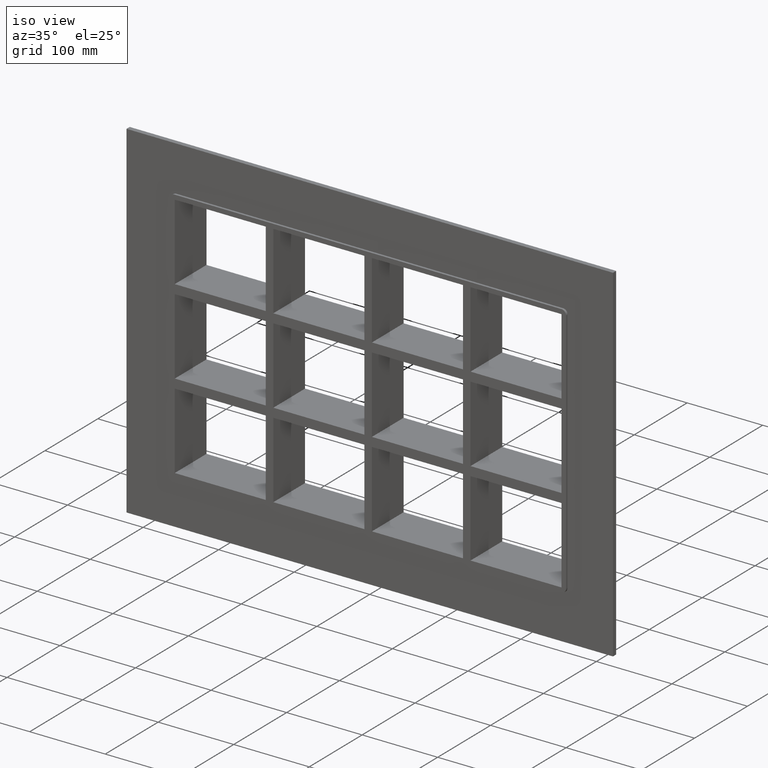
[diagram: clean part render]
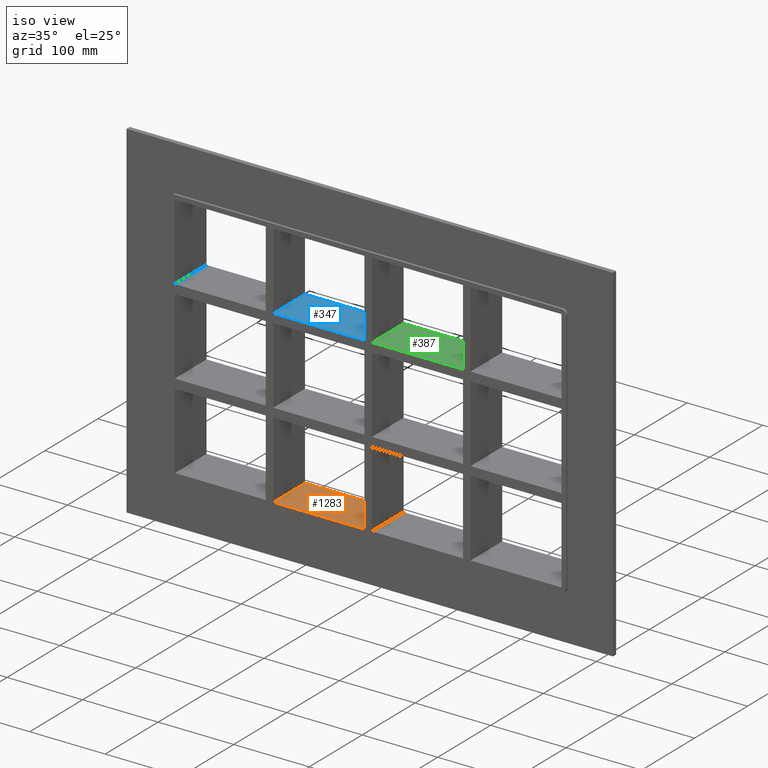
[diagram: same view with three faces highlighted in distinct colors, each labeled with its STEP entity id]
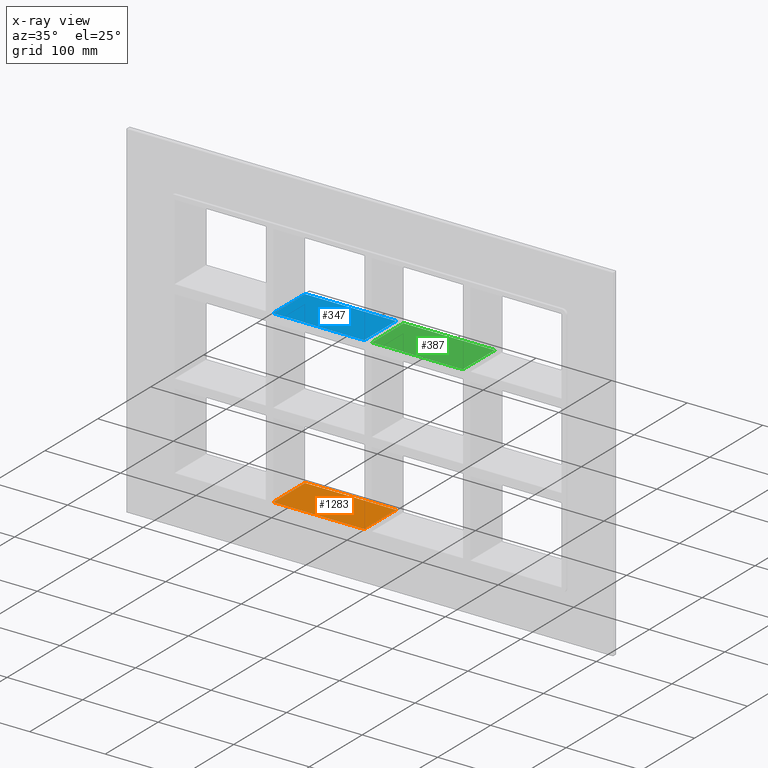
[diagram: x-ray of the same camera — body ghosted, the three highlighted faces saturated]
A machine part, iso view with three faces highlighted in distinct colors.
The next image is the same camera in x-ray (body ghosted, the three faces saturated) — at least one of them is partly hidden behind the body in this view.
Their STEP definitions:

[orange] entity #1283 — the highlighted planar face has unit normal (0, 0, -1).
#926=CARTESIAN_POINT('',(-5.000000000001315,57.0,-163.50000000000006));
#927=VERTEX_POINT('',#926);
#944=CARTESIAN_POINT('',(-125.49999999999272,57.0,-163.49999999998428));
#945=VERTEX_POINT('',#944);
#952=CARTESIAN_POINT('',(-125.49999999999272,57.0,-163.50000000000006));
#953=DIRECTION('',(1.0,0.0,0.0));
#954=VECTOR('',#953,120.49999999999142);
#955=LINE('',#952,#954);
#956=EDGE_CURVE('',#945,#927,#955,.T.);
#1188=CARTESIAN_POINT('',(-5.000000000001315,-3.0,-163.50000000000006));
#1189=VERTEX_POINT('',#1188);
#1190=CARTESIAN_POINT('',(-5.000000000001315,-3.0,-163.50000000000006));
#1191=DIRECTION('',(0.0,1.0,0.0));
#1192=VECTOR('',#1191,60.000000000000007);
#1193=LINE('',#1190,#1192);
#1194=EDGE_CURVE('',#1189,#927,#1193,.T.);
#1260=CARTESIAN_POINT('',(256.0,0.0,-163.50000000000006));
#1261=DIRECTION('',(0.0,0.0,-1.0));
#1262=DIRECTION('',(-1.0,0.0,0.0));
#1263=AXIS2_PLACEMENT_3D('',#1260,#1261,#1262);
#1264=PLANE('',#1263);
#1265=ORIENTED_EDGE('',*,*,#1194,.T.);
#1266=ORIENTED_EDGE('',*,*,#956,.F.);
#1267=CARTESIAN_POINT('',(-125.49999999999272,-3.0,-163.49999999998428));
#1268=VERTEX_POINT('',#1267);
#1269=CARTESIAN_POINT('',(-125.49999999999272,57.000000000000007,-163.50000000000006));
#1270=DIRECTION('',(0.0,-1.0,0.0));
#1271=VECTOR('',#1270,60.000000000000007);
#1272=LINE('',#1269,#1271);
#1273=EDGE_CURVE('',#945,#1268,#1272,.T.);
#1274=ORIENTED_EDGE('',*,*,#1273,.T.);
#1275=CARTESIAN_POINT('',(-5.000000000001307,-3.0,-163.50000000000006));
#1276=DIRECTION('',(-1.0,0.0,0.0));
#1277=VECTOR('',#1276,120.49999999999142);
#1278=LINE('',#1275,#1277);
#1279=EDGE_CURVE('',#1189,#1268,#1278,.T.);
#1280=ORIENTED_EDGE('',*,*,#1279,.F.);
#1281=EDGE_LOOP('',(#1265,#1266,#1274,#1280));
#1282=FACE_OUTER_BOUND('',#1281,.T.);
#1283=ADVANCED_FACE('',(#1282),#1264,.F.);

[blue] entity #347 — the highlighted planar face has unit normal (0, 0, 1).
#308=CARTESIAN_POINT('',(-255.99999999999969,-3.0,62.499999999999893));
#309=DIRECTION('',(0.0,0.0,1.0));
#310=DIRECTION('',(1.0,0.0,0.0));
#311=AXIS2_PLACEMENT_3D('',#308,#309,#310);
#312=PLANE('',#311);
#313=CARTESIAN_POINT('',(-5.00000000000135,57.0,62.499999999999893));
#314=VERTEX_POINT('',#313);
#315=CARTESIAN_POINT('',(-5.00000000000135,-3.0,62.499999999999893));
#316=VERTEX_POINT('',#315);
#317=CARTESIAN_POINT('',(-5.00000000000135,57.0,62.499999999999893));
#318=DIRECTION('',(0.0,-1.0,0.0));
#319=VECTOR('',#318,60.0);
#320=LINE('',#317,#319);
#321=EDGE_CURVE('',#314,#316,#320,.T.);
#322=ORIENTED_EDGE('',*,*,#321,.F.);
#323=CARTESIAN_POINT('',(-125.49999999999272,57.0,62.499999999999893));
#324=VERTEX_POINT('',#323);
#325=CARTESIAN_POINT('',(-125.49999999999272,57.0,62.499999999999893));
#326=DIRECTION('',(1.0,0.0,0.0));
#327=VECTOR('',#326,120.49999999999139);
#328=LINE('',#325,#327);
#329=EDGE_CURVE('',#324,#314,#328,.T.);
#330=ORIENTED_EDGE('',*,*,#329,.F.);
#331=CARTESIAN_POINT('',(-125.49999999999272,-3.0,62.499999999999893));
#332=VERTEX_POINT('',#331);
#333=CARTESIAN_POINT('',(-125.49999999999272,-3.0,62.499999999999893));
#334=DIRECTION('',(0.0,1.0,0.0));
#335=VECTOR('',#334,60.0);
#336=LINE('',#333,#335);
#337=EDGE_CURVE('',#332,#324,#336,.T.);
#338=ORIENTED_EDGE('',*,*,#337,.F.);
#339=CARTESIAN_POINT('',(-125.49999999999272,-3.0,62.499999999999893));
#340=DIRECTION('',(1.0,0.0,0.0));
#341=VECTOR('',#340,120.49999999999139);
#342=LINE('',#339,#341);
#343=EDGE_CURVE('',#332,#316,#342,.T.);
#344=ORIENTED_EDGE('',*,*,#343,.T.);
#345=EDGE_LOOP('',(#322,#330,#338,#344));
#346=FACE_OUTER_BOUND('',#345,.T.);
#347=ADVANCED_FACE('',(#346),#312,.T.);

[green] entity #387 — the highlighted planar face has unit normal (0, 0, 1).
#348=CARTESIAN_POINT('',(-255.99999999999969,-3.0,62.499999999999893));
#349=DIRECTION('',(0.0,0.0,1.0));
#350=DIRECTION('',(1.0,0.0,0.0));
#351=AXIS2_PLACEMENT_3D('',#348,#349,#350);
#352=PLANE('',#351);
#353=CARTESIAN_POINT('',(125.49999999999858,57.0,62.499999999999893));
#354=VERTEX_POINT('',#353);
#355=CARTESIAN_POINT('',(125.49999999999858,-3.0,62.499999999999893));
#356=VERTEX_POINT('',#355);
#357=CARTESIAN_POINT('',(125.49999999999864,57.0,62.499999999999893));
#358=DIRECTION('',(0.0,-1.0,0.0));
#359=VECTOR('',#358,60.0);
#360=LINE('',#357,#359);
#361=EDGE_CURVE('',#354,#356,#360,.T.);
#362=ORIENTED_EDGE('',*,*,#361,.F.);
#363=CARTESIAN_POINT('',(5.000000000007283,57.0,62.499999999999893));
#364=VERTEX_POINT('',#363);
#365=CARTESIAN_POINT('',(5.000000000007304,57.0,62.499999999999893));
#366=DIRECTION('',(1.0,0.0,0.0));
#367=VECTOR('',#366,120.4999999999913);
#368=LINE('',#365,#367);
#369=EDGE_CURVE('',#364,#354,#368,.T.);
#370=ORIENTED_EDGE('',*,*,#369,.F.);
#371=CARTESIAN_POINT('',(5.000000000007283,-3.0,62.499999999999893));
#372=VERTEX_POINT('',#371);
#373=CARTESIAN_POINT('',(5.000000000007283,-3.0,62.499999999999893));
#374=DIRECTION('',(0.0,1.0,0.0));
#375=VECTOR('',#374,60.0);
#376=LINE('',#373,#375);
#377=EDGE_CURVE('',#372,#364,#376,.T.);
#378=ORIENTED_EDGE('',*,*,#377,.F.);
#379=CARTESIAN_POINT('',(5.000000000007304,-3.0,62.499999999999893));
#380=DIRECTION('',(1.0,0.0,0.0));
#381=VECTOR('',#380,120.4999999999913);
#382=LINE('',#379,#381);
#383=EDGE_CURVE('',#372,#356,#382,.T.);
#384=ORIENTED_EDGE('',*,*,#383,.T.);
#385=EDGE_LOOP('',(#362,#370,#378,#384));
#386=FACE_OUTER_BOUND('',#385,.T.);
#387=ADVANCED_FACE('',(#386),#352,.T.);